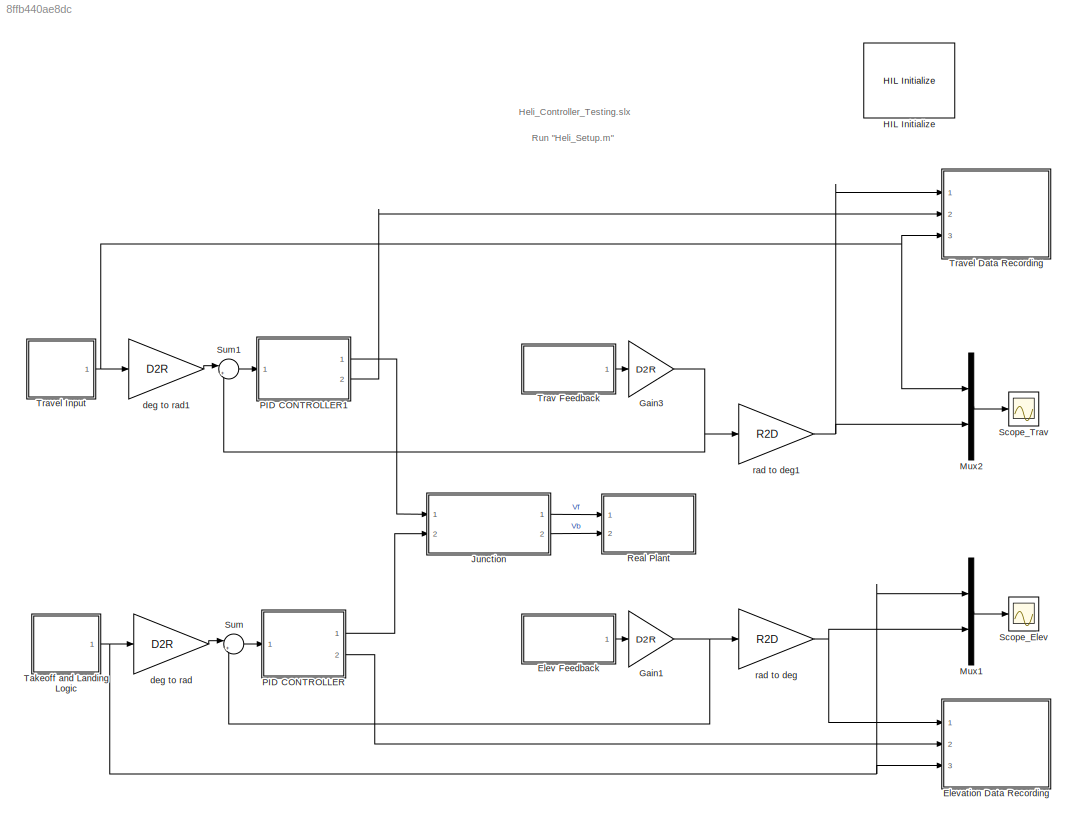
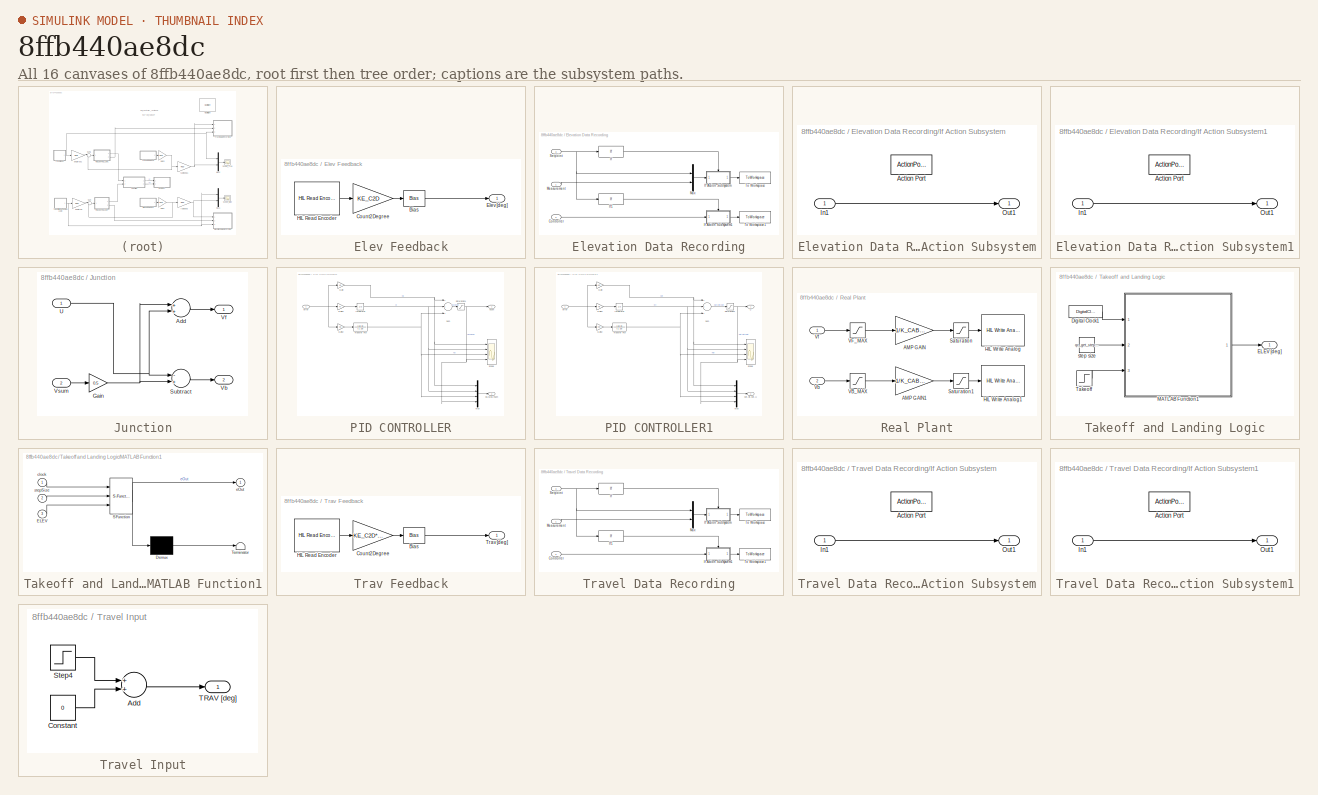
[diagram: thumbnail index - all 16 canvases of the model, root first then tree order]
MODEL slx_8ffb440ae8dc
KIND model
CONFIG AbsTol = auto
CONFIG FixedStep = 0.01
CONFIG MaxStep = auto
CONFIG MinStep = auto
CONFIG RelTol = 1e-3
CONFIG SampleTimeConstraint = Unconstrained
CONFIG Solver = ode1
CONFIG SolverMode = Auto
CONFIG SolverName = ode1
CONFIG StartTime = 0.0
CONFIG StopTime = 80
BLOCK [SubSystem] Elev Feedback
  Ports = [0, 1]
  RequestExecContextInheritance = off
  Variant = off
BLOCK [Bias] Elev Feedback/Bias
  SaturateOnIntegerOverflow = off
BLOCK [Gain] Elev Feedback/Count2Degree
  Gain = KE_C2D
  OutDataTypeStr = Inherit: Inherit via internal rule
  ParamDataTypeStr = Inherit: Inherit via internal rule
  SaturateOnIntegerOverflow = off
BLOCK [Outport] Elev Feedback/Elev [deg]
  IconDisplay = Port number
BLOCK [Reference] Elev Feedback/HIL Read Encoder  REF=quarc_library/Data Acquisition/Generic/Immediate I//O/HIL Read Encoder
  AttributesFormatString = (%<object_name>)
  Ports = [0, 1]
  SourceBlock = quarc_library/Data Acquisition/Generic/Immediate I//O/HIL Read Encoder
  SourceType = HIL Read Encoder
  UserDataPersistent = on
BLOCK [SubSystem] Elevation Data Recording
  Ports = [3]
  RequestExecContextInheritance = off
  Variant = off
BLOCK [Inport] Elevation Data Recording/Controller
  IconDisplay = Port number
  Port = 2
BLOCK [If] Elevation Data Recording/If
  IfExpression = u1 == ELEV_SLF
  Ports = [1, 1]
  ShowElse = off
BLOCK [SubSystem] Elevation Data Recording/If Action Subsystem
  Ports = [1, 1, 0, 0, 0, 0, 0, 1]
  RequestExecContextInheritance = off
  TreatAsAtomicUnit = on
  Variant = off
BLOCK [ActionPort] Elevation Data Recording/If Action Subsystem/Action Port
  ActionType = then
  InitializeStates = reset
BLOCK [Inport] Elevation Data Recording/If Action Subsystem/In1
  IconDisplay = Port number
BLOCK [Outport] Elevation Data Recording/If Action Subsystem/Out1
  IconDisplay = Port number
BLOCK [SubSystem] Elevation Data Recording/If Action Subsystem1
  Ports = [1, 1, 0, 0, 0, 0, 0, 1]
  RequestExecContextInheritance = off
  TreatAsAtomicUnit = on
  Variant = off
BLOCK [ActionPort] Elevation Data Recording/If Action Subsystem1/Action Port
  ActionType = then
  InitializeStates = reset
BLOCK [Inport] Elevation Data Recording/If Action Subsystem1/In1
  IconDisplay = Port number
BLOCK [Outport] Elevation Data Recording/If Action Subsystem1/Out1
  IconDisplay = Port number
BLOCK [If] Elevation Data Recording/If1
  IfExpression = u1 == ELEV_SLF
  Ports = [1, 1]
  ShowElse = off
BLOCK [Inport] Elevation Data Recording/Measurement
  IconDisplay = Port number
BLOCK [Mux] Elevation Data Recording/Mux
  DisplayOption = bar
  Inputs = 2
  Ports = [2, 1]
BLOCK [Inport] Elevation Data Recording/Setpoint
  IconDisplay = Port number
  Port = 3
BLOCK [ToWorkspace] Elevation Data Recording/To Workspace
  MaxDataPoints = inf
  Ports = [1]
  SampleTime = -1
  SaveFormat = Structure With Time
  VariableName = stockData
BLOCK [ToWorkspace] Elevation Data Recording/To Workspace1
  MaxDataPoints = inf
  Ports = [1]
  SampleTime = -1
  SaveFormat = Structure With Time
  VariableName = stockVolts
BLOCK [Gain] Gain1
  Gain = D2R
  OutDataTypeStr = Inherit: Inherit via internal rule
  ParamDataTypeStr = Inherit: Inherit via internal rule
  SaturateOnIntegerOverflow = off
BLOCK [Gain] Gain3
  Gain = D2R
  OutDataTypeStr = Inherit: Inherit via internal rule
  ParamDataTypeStr = Inherit: Inherit via internal rule
  SaturateOnIntegerOverflow = off
BLOCK [Reference] HIL Initialize  REF=quarc_library/Data Acquisition/Generic/Configuration/HIL Initialize
  AttributesFormatString = %<object_name> (%<board_type>-%<board_number>)
  Ports = []
  Priority = -99
  SourceBlock = quarc_library/Data Acquisition/Generic/Configuration/HIL Initialize
  SourceType = HIL Initialize
  UserDataPersistent = on
BLOCK [SubSystem] Junction
  Ports = [2, 2]
  RequestExecContextInheritance = off
  Variant = off
BLOCK [Sum] Junction/Add
  InputSameDT = off
  OutDataTypeStr = Inherit: Inherit via internal rule
  Ports = [2, 1]
  SaturateOnIntegerOverflow = off
BLOCK [Gain] Junction/Gain
  Gain = 0.5
  OutDataTypeStr = Inherit: Inherit via internal rule
  ParamDataTypeStr = Inherit: Inherit via internal rule
  SaturateOnIntegerOverflow = off
BLOCK [Sum] Junction/Subtract
  InputSameDT = off
  Inputs = -+
  OutDataTypeStr = Inherit: Inherit via internal rule
  Ports = [2, 1]
  SaturateOnIntegerOverflow = off
BLOCK [Inport] Junction/U
  IconDisplay = Port number
BLOCK [Outport] Junction/Vb
  IconDisplay = Port number
  Port = 2
BLOCK [Outport] Junction/Vf
  IconDisplay = Port number
BLOCK [Inport] Junction/Vsum
  IconDisplay = Port number
  Port = 2
BLOCK [Mux] Mux1
  DisplayOption = bar
  Inputs = 2
  Ports = [2, 1]
BLOCK [Mux] Mux2
  DisplayOption = bar
  Inputs = 2
  Ports = [2, 1]
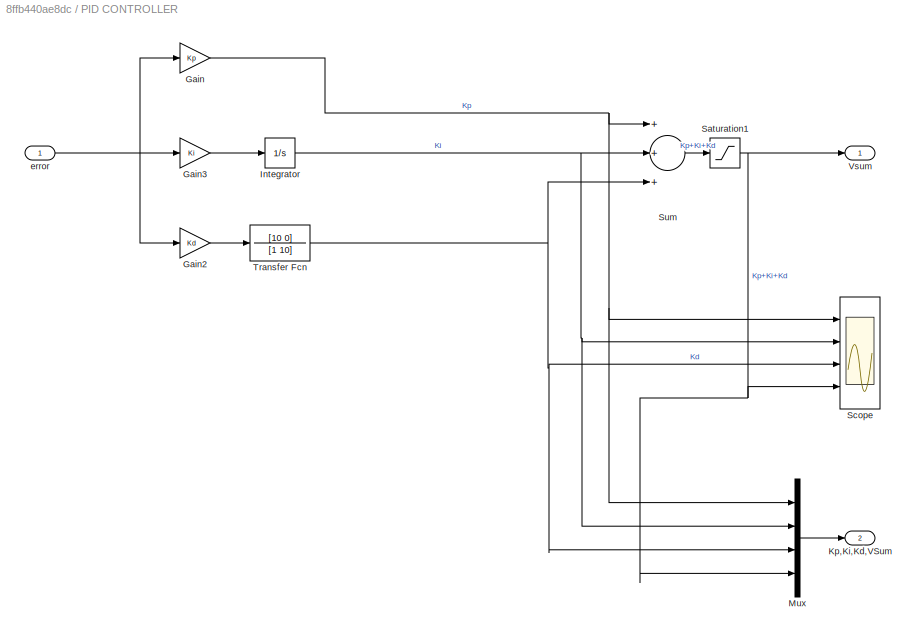
BLOCK [SubSystem] PID CONTROLLER
  Ports = [1, 2]
  RequestExecContextInheritance = off
  Variant = off
BLOCK [Gain] PID CONTROLLER/Gain
  Gain = Kp
  OutDataTypeStr = Inherit: Inherit via internal rule
  ParamDataTypeStr = Inherit: Inherit via internal rule
  SaturateOnIntegerOverflow = off
BLOCK [Gain] PID CONTROLLER/Gain2
  Gain = Kd
  OutDataTypeStr = Inherit: Inherit via internal rule
  ParamDataTypeStr = Inherit: Inherit via internal rule
  SaturateOnIntegerOverflow = off
BLOCK [Gain] PID CONTROLLER/Gain3
  Gain = Ki
  OutDataTypeStr = Inherit: Inherit via internal rule
  ParamDataTypeStr = Inherit: Inherit via internal rule
  SaturateOnIntegerOverflow = off
BLOCK [Integrator] PID CONTROLLER/Integrator
  Ports = [1, 1]
BLOCK [Outport] PID CONTROLLER/Kp,Ki,Kd,VSum
  IconDisplay = Port number
  Port = 2
BLOCK [Mux] PID CONTROLLER/Mux
  DisplayOption = bar
  Ports = [4, 1]
BLOCK [Saturate] PID CONTROLLER/Saturation1
  InputPortMap = u0
  LowerLimit = -VSUM_MAX
  Ports = [1, 1]
  UpperLimit = VSUM_MAX
BLOCK [Scope] PID CONTROLLER/Scope
  NumInputPorts = 4
  Ports = [4]
  ScopeSpecificationString = Simulink.scopes.TimeScopeBlockCfg('CurrentConfiguration', extmgr.ConfigurationSet(extmgr.Configuration('Core','General UI',true),extmgr.Configuration('Core','Source UI',true),extmgr.Configuration('Sources','WiredSimulink',true,'DataLoggingVariableName','StockVolts','DataLoggingSaveFormat','StructureWithTime','DataLoggingDecimation','1','DataLoggingDecimateData',true),extmgr.Configuration('Visuals'...<+3689ch>
BLOCK [Sum] PID CONTROLLER/Sum
  InputSameDT = off
  Inputs = +++
  OutDataTypeStr = Inherit: Inherit via internal rule
  Ports = [3, 1]
  SaturateOnIntegerOverflow = off
BLOCK [TransferFcn] PID CONTROLLER/Transfer Fcn
  Denominator = [1 10]
  Numerator = [10 0]
BLOCK [Outport] PID CONTROLLER/Vsum
  IconDisplay = Port number
BLOCK [Inport] PID CONTROLLER/error
  IconDisplay = Port number
BLOCK [SubSystem] PID CONTROLLER1
  Ports = [1, 2]
  RequestExecContextInheritance = off
  Variant = off
BLOCK [Gain] PID CONTROLLER1/Gain
  Gain = Kpt
  OutDataTypeStr = Inherit: Inherit via internal rule
  ParamDataTypeStr = Inherit: Inherit via internal rule
  SaturateOnIntegerOverflow = off
BLOCK [Gain] PID CONTROLLER1/Gain2
  Gain = Kdt
  OutDataTypeStr = Inherit: Inherit via internal rule
  ParamDataTypeStr = Inherit: Inherit via internal rule
  SaturateOnIntegerOverflow = off
BLOCK [Gain] PID CONTROLLER1/Gain3
  Gain = Kit
  OutDataTypeStr = Inherit: Inherit via internal rule
  ParamDataTypeStr = Inherit: Inherit via internal rule
  SaturateOnIntegerOverflow = off
BLOCK [Integrator] PID CONTROLLER1/Integrator
  Ports = [1, 1]
BLOCK [Outport] PID CONTROLLER1/Kpt,Kit,Kdt,U
  IconDisplay = Port number
  Port = 2
BLOCK [Mux] PID CONTROLLER1/Mux
  DisplayOption = bar
  Ports = [4, 1]
BLOCK [Saturate] PID CONTROLLER1/Saturation1
  InputPortMap = u0
  LowerLimit = -U_MAX
  Ports = [1, 1]
  UpperLimit = U_MAX
BLOCK [Scope] PID CONTROLLER1/Scope
  NumInputPorts = 4
  Ports = [4]
  ScopeSpecificationString = Simulink.scopes.TimeScopeBlockCfg('CurrentConfiguration', extmgr.ConfigurationSet(extmgr.Configuration('Core','General UI',true),extmgr.Configuration('Core','Source UI',true),extmgr.Configuration('Sources','WiredSimulink',true,'DataLoggingVariableName','StockVolts','DataLoggingSaveFormat','StructureWithTime','DataLoggingDecimation','1','DataLoggingDecimateData',true),extmgr.Configuration('Visuals'...<+3689ch>
BLOCK [Sum] PID CONTROLLER1/Sum
  InputSameDT = off
  Inputs = +++
  OutDataTypeStr = Inherit: Inherit via internal rule
  Ports = [3, 1]
  SaturateOnIntegerOverflow = off
BLOCK [TransferFcn] PID CONTROLLER1/Transfer Fcn
  Denominator = [1 10]
  Numerator = [10 0]
BLOCK [Outport] PID CONTROLLER1/U
  IconDisplay = Port number
BLOCK [Inport] PID CONTROLLER1/error
  IconDisplay = Port number
BLOCK [SubSystem] Real Plant
  Ports = [2]
  RequestExecContextInheritance = off
  Variant = off
BLOCK [Gain] Real Plant/AMP GAIN
  Gain = 1/K_CABLE
  OutDataTypeStr = Inherit: Inherit via internal rule
  ParamDataTypeStr = Inherit: Inherit via internal rule
  SaturateOnIntegerOverflow = off
BLOCK [Gain] Real Plant/AMP GAIN1
  Gain = 1/K_CABLE
  OutDataTypeStr = Inherit: Inherit via internal rule
  ParamDataTypeStr = Inherit: Inherit via internal rule
  SaturateOnIntegerOverflow = off
BLOCK [Reference] Real Plant/HIL Write Analog  REF=quarc_library/Data Acquisition/Generic/Immediate I//O/HIL Write Analog
  AttributesFormatString = (%<object_name>)
  Ports = [1]
  SourceBlock = quarc_library/Data Acquisition/Generic/Immediate I//O/HIL Write Analog
  SourceType = HIL Write Analog
  UserDataPersistent = on
BLOCK [Reference] Real Plant/HIL Write Analog1  REF=quarc_library/Data Acquisition/Generic/Immediate I//O/HIL Write Analog
  AttributesFormatString = (%<object_name>)
  Ports = [1]
  SourceBlock = quarc_library/Data Acquisition/Generic/Immediate I//O/HIL Write Analog
  SourceType = HIL Write Analog
  UserDataPersistent = on
BLOCK [Saturate] Real Plant/Saturation
  InputPortMap = u0
  LowerLimit = -K_DAQ*0.5
  Ports = [1, 1]
  UpperLimit = K_DAQ*0.5
BLOCK [Saturate] Real Plant/Saturation1
  InputPortMap = u0
  LowerLimit = -K_DAQ*0.5
  Ports = [1, 1]
  UpperLimit = K_DAQ*0.5
BLOCK [Saturate] Real Plant/VB_MAX
  InputPortMap = u0
  LowerLimit = -VSUM_MAX*0.5
  Ports = [1, 1]
  UpperLimit = VSUM_MAX*0.5
BLOCK [Saturate] Real Plant/VF_MAX
  InputPortMap = u0
  LinearizeAsGain = off
  LowerLimit = -VSUM_MAX*0.5
  Ports = [1, 1]
  UpperLimit = VSUM_MAX*0.5
BLOCK [Inport] Real Plant/Vb
  IconDisplay = Port number
  Port = 2
BLOCK [Inport] Real Plant/Vf
  IconDisplay = Port number
BLOCK [Scope] Scope_Elev
  Ports = [1]
  ScopeSpecificationString = Simulink.scopes.TimeScopeBlockCfg('CurrentConfiguration', extmgr.ConfigurationSet(extmgr.Configuration('Core','General UI',true),extmgr.Configuration('Core','Source UI',true),extmgr.Configuration('Sources','WiredSimulink',true,'DataLoggingSaveFormat','StructureWithTime','DataLoggingLimitDataPoints',true,'DataLoggingDecimation','1','DataLoggingDecimateData',true),extmgr.Configuration('Visuals','Tim...<+1726ch>
BLOCK [Scope] Scope_Trav
  Ports = [1]
  ScopeSpecificationString = Simulink.scopes.TimeScopeBlockCfg('CurrentConfiguration', extmgr.ConfigurationSet(extmgr.Configuration('Core','General UI',true),extmgr.Configuration('Core','Source UI',true),extmgr.Configuration('Sources','WiredSimulink',true,'DataLoggingSaveFormat','StructureWithTime','DataLoggingLimitDataPoints',true,'DataLoggingDecimation','1','DataLoggingDecimateData',true,'DataLoggingVariableName','ScopeData...<+1765ch>
BLOCK [Sum] Sum
  IconShape = round
  InputSameDT = off
  Inputs = |+-
  OutDataTypeStr = Inherit: Inherit via internal rule
  Ports = [2, 1]
  SaturateOnIntegerOverflow = off
BLOCK [Sum] Sum1
  IconShape = round
  InputSameDT = off
  Inputs = |+-
  OutDataTypeStr = Inherit: Inherit via internal rule
  Ports = [2, 1]
  SaturateOnIntegerOverflow = off
BLOCK [SubSystem] Takeoff and Landing Logic
  Ports = [0, 1]
  RequestExecContextInheritance = off
  Variant = off
BLOCK [DigitalClock] Takeoff and Landing Logic/Digital Clock1
  SampleTime = qc_get_step_size
BLOCK [Outport] Takeoff and Landing Logic/ELEV [deg]
  IconDisplay = Port number
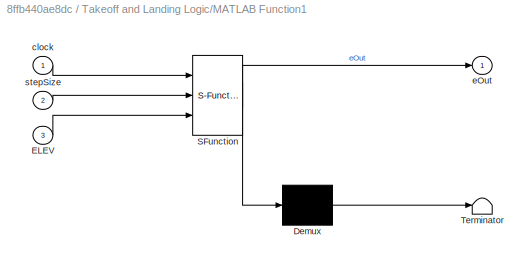
BLOCK [SubSystem] Takeoff and Landing Logic/MATLAB Function1
  ErrorFcn = Stateflow.Translate.translate
  PermitHierarchicalResolution = ExplicitOnly
  Ports = [3, 1]
  RequestExecContextInheritance = off
  SFBlockType = MATLAB Function
  TreatAsAtomicUnit = on
  Variant = off
BLOCK [Demux] Takeoff and Landing Logic/MATLAB Function1/ Demux 
  Outputs = 1
  Ports = [1, 1]
BLOCK [S-Function] Takeoff and Landing Logic/MATLAB Function1/ SFunction 
  EnableBusSupport = on
  FunctionName = sf_sfun
  PortCounts = [3 2]
  Ports = [3, 2]
  SFunctionDeploymentMode = off
  Tag = Stateflow S-Function Heli_Controller_Testing 2
BLOCK [Terminator] Takeoff and Landing Logic/MATLAB Function1/ Terminator 
BLOCK [Inport] Takeoff and Landing Logic/MATLAB Function1/ELEV
  IconDisplay = Port number
  Port = 3
BLOCK [Inport] Takeoff and Landing Logic/MATLAB Function1/clock
  IconDisplay = Port number
BLOCK [Outport] Takeoff and Landing Logic/MATLAB Function1/eOut
  IconDisplay = Port number
BLOCK [Inport] Takeoff and Landing Logic/MATLAB Function1/stepSize
  IconDisplay = Port number
  Port = 2
BLOCK [Step] Takeoff and Landing Logic/Takeoff
  After = ELEV_SLF
  SampleTime = 0
BLOCK [Constant] Takeoff and Landing Logic/step size
  Value = qc_get_step_size
BLOCK [SubSystem] Trav Feedback
  Ports = [0, 1]
  RequestExecContextInheritance = off
  Variant = off
BLOCK [Bias] Trav Feedback/Bias
  SaturateOnIntegerOverflow = off
BLOCK [Gain] Trav Feedback/Count2Degree
  Gain = KE_C2D*0.5
  OutDataTypeStr = Inherit: Inherit via internal rule
  ParamDataTypeStr = Inherit: Inherit via internal rule
  SaturateOnIntegerOverflow = off
BLOCK [Reference] Trav Feedback/HIL Read Encoder  REF=quarc_library/Data Acquisition/Generic/Immediate I//O/HIL Read Encoder
  AttributesFormatString = (%<object_name>)
  Ports = [0, 1]
  SourceBlock = quarc_library/Data Acquisition/Generic/Immediate I//O/HIL Read Encoder
  SourceType = HIL Read Encoder
  UserDataPersistent = on
BLOCK [Outport] Trav Feedback/Trav [deg]
  IconDisplay = Port number
BLOCK [SubSystem] Travel Data Recording
  Ports = [3]
  RequestExecContextInheritance = off
  Variant = off
BLOCK [Inport] Travel Data Recording/Controller
  IconDisplay = Port number
  Port = 2
BLOCK [If] Travel Data Recording/If
  IfExpression = u1 == TRAV_SS
  Ports = [1, 1]
  ShowElse = off
BLOCK [SubSystem] Travel Data Recording/If Action Subsystem
  Ports = [1, 1, 0, 0, 0, 0, 0, 1]
  RequestExecContextInheritance = off
  TreatAsAtomicUnit = on
  Variant = off
BLOCK [ActionPort] Travel Data Recording/If Action Subsystem/Action Port
  ActionType = then
  InitializeStates = reset
BLOCK [Inport] Travel Data Recording/If Action Subsystem/In1
  IconDisplay = Port number
BLOCK [Outport] Travel Data Recording/If Action Subsystem/Out1
  IconDisplay = Port number
BLOCK [SubSystem] Travel Data Recording/If Action Subsystem1
  Ports = [1, 1, 0, 0, 0, 0, 0, 1]
  RequestExecContextInheritance = off
  TreatAsAtomicUnit = on
  Variant = off
BLOCK [ActionPort] Travel Data Recording/If Action Subsystem1/Action Port
  ActionType = then
  InitializeStates = reset
BLOCK [Inport] Travel Data Recording/If Action Subsystem1/In1
  IconDisplay = Port number
BLOCK [Outport] Travel Data Recording/If Action Subsystem1/Out1
  IconDisplay = Port number
BLOCK [If] Travel Data Recording/If1
  IfExpression = u1 == TRAV_SS
  Ports = [1, 1]
  ShowElse = off
BLOCK [Inport] Travel Data Recording/Measurement
  IconDisplay = Port number
BLOCK [Mux] Travel Data Recording/Mux
  DisplayOption = bar
  Inputs = 2
  Ports = [2, 1]
BLOCK [Inport] Travel Data Recording/Setpoint
  IconDisplay = Port number
  Port = 3
BLOCK [ToWorkspace] Travel Data Recording/To Workspace
  MaxDataPoints = inf
  Ports = [1]
  SampleTime = -1
  SaveFormat = Structure With Time
  VariableName = trav1Data
BLOCK [ToWorkspace] Travel Data Recording/To Workspace1
  MaxDataPoints = inf
  Ports = [1]
  SampleTime = -1
  SaveFormat = Structure With Time
  VariableName = trav1Volts
BLOCK [SubSystem] Travel Input
  Ports = [0, 1]
  RequestExecContextInheritance = off
  Variant = off
BLOCK [Sum] Travel Input/Add
  InputSameDT = off
  OutDataTypeStr = Inherit: Inherit via internal rule
  Ports = [2, 1]
  SaturateOnIntegerOverflow = off
BLOCK [Constant] Travel Input/Constant
  Value = 0
BLOCK [Step] Travel Input/Step4
  After = TRAV_SS
  SampleTime = 0
  Time = 20
BLOCK [Outport] Travel Input/TRAV [deg]
  IconDisplay = Port number
BLOCK [Gain] deg to rad
  Gain = D2R
  OutDataTypeStr = Inherit: Inherit via internal rule
  ParamDataTypeStr = Inherit: Inherit via internal rule
  SaturateOnIntegerOverflow = off
BLOCK [Gain] deg to rad1
  Gain = D2R
  OutDataTypeStr = Inherit: Inherit via internal rule
  ParamDataTypeStr = Inherit: Inherit via internal rule
  SaturateOnIntegerOverflow = off
BLOCK [Gain] rad to deg
  Gain = R2D
  OutDataTypeStr = Inherit: Inherit via internal rule
  ParamDataTypeStr = Inherit: Inherit via internal rule
  SaturateOnIntegerOverflow = off
BLOCK [Gain] rad to deg1
  Gain = R2D
  OutDataTypeStr = Inherit: Inherit via internal rule
  ParamDataTypeStr = Inherit: Inherit via internal rule
  SaturateOnIntegerOverflow = off
ANNOTATION (root): Heli_Controller_Testing.slx
ANNOTATION (root): Run "Heli_Setup.m"
LINE Elev Feedback/Bias:1 -> Elev Feedback/Elev [deg]:1
LINE Elev Feedback/Count2Degree:1 -> Elev Feedback/Bias:1
LINE Elev Feedback/HIL Read Encoder:1 -> Elev Feedback/Count2Degree:1
LINE Elev Feedback:1 -> Gain1:1
LINE Elevation Data Recording/Controller:1 -> Elevation Data Recording/If Action Subsystem1:1
LINE Elevation Data Recording/If Action Subsystem/In1:1 -> Elevation Data Recording/If Action Subsystem/Out1:1
LINE Elevation Data Recording/If Action Subsystem1/In1:1 -> Elevation Data Recording/If Action Subsystem1/Out1:1
LINE Elevation Data Recording/If Action Subsystem1:1 -> Elevation Data Recording/To Workspace1:1
LINE Elevation Data Recording/If Action Subsystem:1 -> Elevation Data Recording/To Workspace:1
LINE Elevation Data Recording/If1:1 -> Elevation Data Recording/If Action Subsystem1:ifaction
LINE Elevation Data Recording/If:1 -> Elevation Data Recording/If Action Subsystem:ifaction
LINE Elevation Data Recording/Measurement:1 -> Elevation Data Recording/Mux:2
LINE Elevation Data Recording/Mux:1 -> Elevation Data Recording/If Action Subsystem:1
NET Elevation Data Recording/Setpoint:1 -> Elevation Data Recording/If1:1, Elevation Data Recording/If:1, Elevation Data Recording/Mux:1
NET Gain1:1 -> Sum:2, rad to deg:1
NET Gain3:1 -> Sum1:2, rad to deg1:1
LINE Junction/Add:1 -> Junction/Vf:1
NET Junction/Gain:1 -> Junction/Add:1, Junction/Subtract:2
LINE Junction/Subtract:1 -> Junction/Vb:1
NET Junction/U:1 -> Junction/Add:2, Junction/Subtract:1
LINE Junction/Vsum:1 -> Junction/Gain:1
LINE Junction:1 -> Real Plant:1
LINE Junction:2 -> Real Plant:2
LINE Mux1:1 -> Scope_Elev:1
LINE Mux2:1 -> Scope_Trav:1
LINE PID CONTROLLER/Gain2:1 -> PID CONTROLLER/Transfer Fcn:1
LINE PID CONTROLLER/Gain3:1 -> PID CONTROLLER/Integrator:1
NET PID CONTROLLER/Gain:1 -> PID CONTROLLER/Mux:1, PID CONTROLLER/Scope:1, PID CONTROLLER/Sum:1
NET PID CONTROLLER/Integrator:1 -> PID CONTROLLER/Mux:2, PID CONTROLLER/Scope:2, PID CONTROLLER/Sum:2
LINE PID CONTROLLER/Mux:1 -> PID CONTROLLER/Kp,Ki,Kd,VSum:1
NET PID CONTROLLER/Saturation1:1 -> PID CONTROLLER/Mux:4, PID CONTROLLER/Scope:4, PID CONTROLLER/Vsum:1
LINE PID CONTROLLER/Sum:1 -> PID CONTROLLER/Saturation1:1
NET PID CONTROLLER/Transfer Fcn:1 -> PID CONTROLLER/Mux:3, PID CONTROLLER/Scope:3, PID CONTROLLER/Sum:3
NET PID CONTROLLER/error:1 -> PID CONTROLLER/Gain2:1, PID CONTROLLER/Gain3:1, PID CONTROLLER/Gain:1
LINE PID CONTROLLER1/Gain2:1 -> PID CONTROLLER1/Transfer Fcn:1
LINE PID CONTROLLER1/Gain3:1 -> PID CONTROLLER1/Integrator:1
NET PID CONTROLLER1/Gain:1 -> PID CONTROLLER1/Mux:1, PID CONTROLLER1/Scope:1, PID CONTROLLER1/Sum:1
NET PID CONTROLLER1/Integrator:1 -> PID CONTROLLER1/Mux:2, PID CONTROLLER1/Scope:2, PID CONTROLLER1/Sum:2
LINE PID CONTROLLER1/Mux:1 -> PID CONTROLLER1/Kpt,Kit,Kdt,U:1
NET PID CONTROLLER1/Saturation1:1 -> PID CONTROLLER1/Mux:4, PID CONTROLLER1/Scope:4, PID CONTROLLER1/U:1
LINE PID CONTROLLER1/Sum:1 -> PID CONTROLLER1/Saturation1:1
NET PID CONTROLLER1/Transfer Fcn:1 -> PID CONTROLLER1/Mux:3, PID CONTROLLER1/Scope:3, PID CONTROLLER1/Sum:3
NET PID CONTROLLER1/error:1 -> PID CONTROLLER1/Gain2:1, PID CONTROLLER1/Gain3:1, PID CONTROLLER1/Gain:1
LINE PID CONTROLLER1:1 -> Junction:1
LINE PID CONTROLLER1:2 -> Travel Data Recording:2
LINE PID CONTROLLER:1 -> Junction:2
LINE PID CONTROLLER:2 -> Elevation Data Recording:2
LINE Real Plant/AMP GAIN1:1 -> Real Plant/Saturation1:1
LINE Real Plant/AMP GAIN:1 -> Real Plant/Saturation:1
LINE Real Plant/Saturation1:1 -> Real Plant/HIL Write Analog1:1
LINE Real Plant/Saturation:1 -> Real Plant/HIL Write Analog:1
LINE Real Plant/VB_MAX:1 -> Real Plant/AMP GAIN1:1
LINE Real Plant/VF_MAX:1 -> Real Plant/AMP GAIN:1
LINE Real Plant/Vb:1 -> Real Plant/VB_MAX:1
LINE Real Plant/Vf:1 -> Real Plant/VF_MAX:1
LINE Sum1:1 -> PID CONTROLLER1:1
LINE Sum:1 -> PID CONTROLLER:1
LINE Takeoff and Landing Logic/Digital Clock1:1 -> Takeoff and Landing Logic/MATLAB Function1:1
LINE Takeoff and Landing Logic/MATLAB Function1:1 -> Takeoff and Landing Logic/ELEV [deg]:1
LINE Takeoff and Landing Logic/Takeoff:1 -> Takeoff and Landing Logic/MATLAB Function1:3
LINE Takeoff and Landing Logic/step size:1 -> Takeoff and Landing Logic/MATLAB Function1:2
NET Takeoff and Landing Logic:1 -> Elevation Data Recording:3, Mux1:1, deg to rad:1
LINE Trav Feedback/Bias:1 -> Trav Feedback/Trav [deg]:1
LINE Trav Feedback/Count2Degree:1 -> Trav Feedback/Bias:1
LINE Trav Feedback/HIL Read Encoder:1 -> Trav Feedback/Count2Degree:1
LINE Trav Feedback:1 -> Gain3:1
LINE Travel Data Recording/Controller:1 -> Travel Data Recording/If Action Subsystem1:1
LINE Travel Data Recording/If Action Subsystem/In1:1 -> Travel Data Recording/If Action Subsystem/Out1:1
LINE Travel Data Recording/If Action Subsystem1/In1:1 -> Travel Data Recording/If Action Subsystem1/Out1:1
LINE Travel Data Recording/If Action Subsystem1:1 -> Travel Data Recording/To Workspace1:1
LINE Travel Data Recording/If Action Subsystem:1 -> Travel Data Recording/To Workspace:1
LINE Travel Data Recording/If1:1 -> Travel Data Recording/If Action Subsystem1:ifaction
LINE Travel Data Recording/If:1 -> Travel Data Recording/If Action Subsystem:ifaction
LINE Travel Data Recording/Measurement:1 -> Travel Data Recording/Mux:2
LINE Travel Data Recording/Mux:1 -> Travel Data Recording/If Action Subsystem:1
NET Travel Data Recording/Setpoint:1 -> Travel Data Recording/If1:1, Travel Data Recording/If:1, Travel Data Recording/Mux:1
LINE Travel Input/Add:1 -> Travel Input/TRAV [deg]:1
LINE Travel Input/Constant:1 -> Travel Input/Add:2
LINE Travel Input/Step4:1 -> Travel Input/Add:1
NET Travel Input:1 -> Mux2:1, Travel Data Recording:3, deg to rad1:1
LINE deg to rad1:1 -> Sum1:1
LINE deg to rad:1 -> Sum:1
NET rad to deg1:1 -> Mux2:2, Travel Data Recording:1
NET rad to deg:1 -> Elevation Data Recording:1, Mux1:2
note: NET lines group one-source signal fan-out (src -> all destinations, sorted); 1:1 wires keep LINE
CHART Takeoff and
Landing Logic/MATLAB Function1 states=1 transitions=1
  STATE_LABEL 'eML_blk_kernel()'
  STATE_LABEL 'SCRIPT:\nfunction eOut = fcn(clock,stepSize,ELEV)\n%#codegen\n\npersistent elevOut;\nif isempty(elevOut)\n    elevOut = 0;\nend    \n\nif(clock < 55)\n    elevOut = ELEV;\nelse\n    elevOut = elevOut - ELEV/clock*stepSize*2;\nend\neOut = elevOut;'
